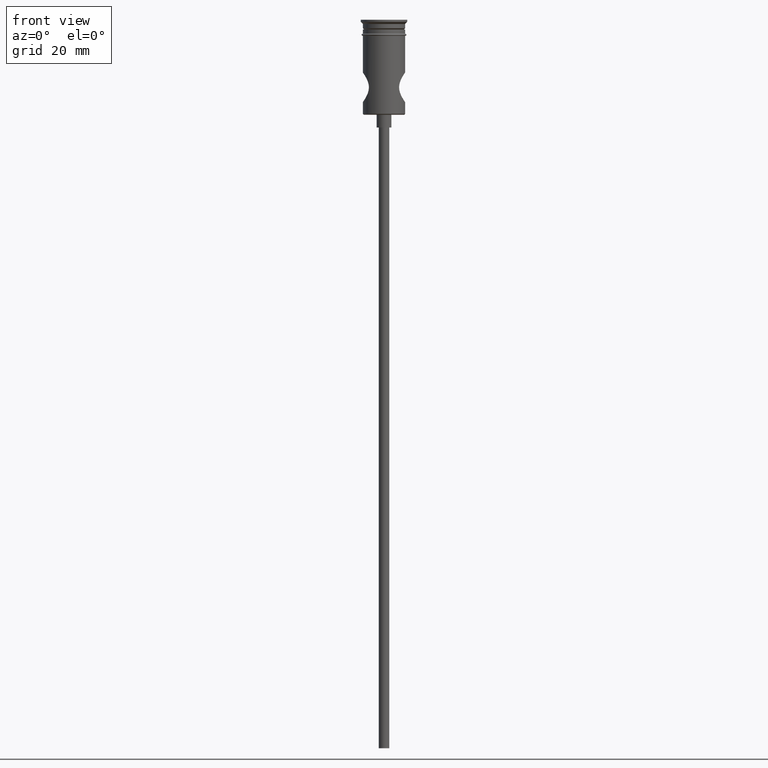
[diagram: clean part render]
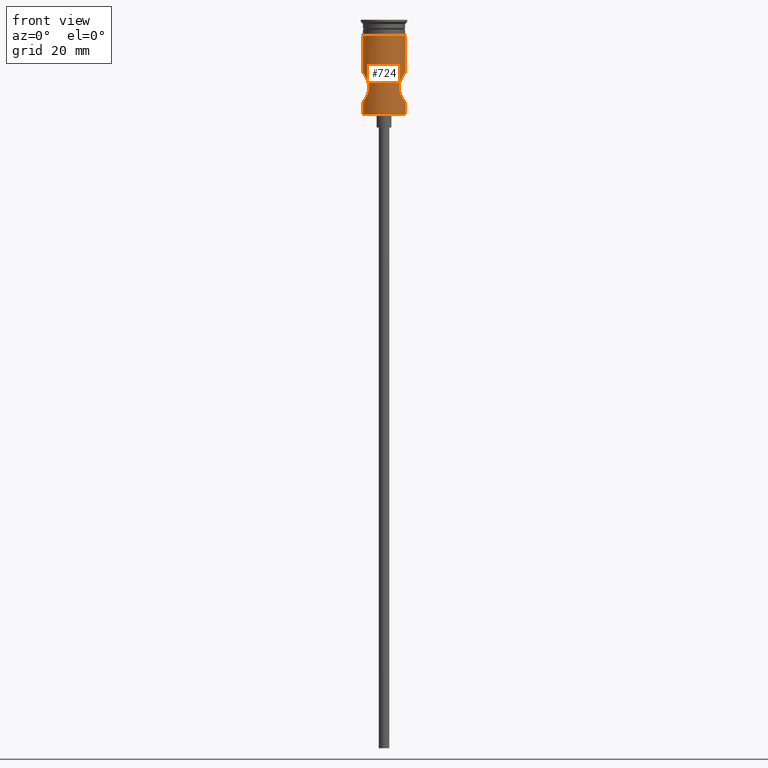
[diagram: same view with one face highlighted and labeled with its STEP entity id]
A machine part, front view. The second image highlights one B-rep face of the part: STEP entity #724.
In plain terms, the highlighted cylindrical surface (edge-blend (fillet) strip) has radius 5 mm, axis along (-0, -0, 1).
Its self-contained STEP definition (entity closure, byte-faithful):
#14 = EDGE_CURVE ( 'NONE', #882, #389, #831, .T. ) ;
#21 = FACE_OUTER_BOUND ( 'NONE', #793, .T. ) ;
#26 = CARTESIAN_POINT ( 'NONE',  ( -4.867983987714242566, -1.162668094897675308, -12.69064358740267728 ) ) ;
#41 = B_SPLINE_CURVE_WITH_KNOTS ( 'NONE', 3,
 ( #1193, #1357, #1248, #229, #1070, #538, #964, #1426, #1433, #336, #446, #1395, #94, #1288, #1195, #640, #948, #222, #439, #1299, #953, #1084, #326, #1414, #1315, #331, #110, #765, #1203, #558, #1379, #706, #824, #931 ),
 .UNSPECIFIED., .F., .F.,
 ( 4, 2, 2, 2, 2, 2, 2, 2, 2, 2, 2, 2, 2, 2, 2, 2, 4 ),
 ( 0.01136858566133556320, 0.01207818438826614021, 0.01278778311519671897, 0.01349738184212729772, 0.01420698056905787474, 0.01491657929598845175, 0.01562617802291902877, 0.01633577674984960579, 0.01704537547678018627, 0.01775497420371076329, 0.01846457293064134031, 0.01917417165757191733, 0.01988377038450249434, 0.02059336911143307483, 0.02130296783836365185, 0.02201256656529422887, 0.02272216529222480588 ),
 .UNSPECIFIED. ) ;
#53 = CARTESIAN_POINT ( 'NONE',  ( -3.570659081539441004, -3.500056246640168567, -15.76290149602504975 ) ) ;
#75 = CARTESIAN_POINT ( 'NONE',  ( -4.999999999999997335, 6.123233995736763324E-16, 0.000000000000000000 ) ) ;
#76 = DIRECTION ( 'NONE',  ( -0.000000000000000000, -0.000000000000000000, 1.000000000000000000 ) ) ;
#78 = CIRCLE ( 'NONE', #873, 4.999999999999999112 ) ;
#94 = CARTESIAN_POINT ( 'NONE',  ( 3.895739369778995265, -3.136303962901519249, -14.43013777325952240 ) ) ;
#110 = CARTESIAN_POINT ( 'NONE',  ( 4.517756352871694858, -2.151795251714681001, -18.76940848963280217 ) ) ;
#135 = VERTEX_POINT ( 'NONE', #1276 ) ;
#156 = B_SPLINE_CURVE_WITH_KNOTS ( 'NONE', 3,
 ( #726, #1024, #1283, #603, #308, #1256, #623, #1382, #410, #1390, #255, #734, #683, #1039, #1162, #194, #819, #53, #997, #916, #1262, #1049, #399, #1112, #188, #532, #826, #1273, #709, #26, #476, #302, #615, #910 ),
 .UNSPECIFIED., .F., .F.,
 ( 4, 2, 2, 2, 2, 2, 2, 2, 2, 2, 2, 2, 2, 2, 2, 2, 4 ),
 ( 0.000000000000000000, 0.0007105366038334728082, 0.001421073207666945616, 0.002131609811500418533, 0.002842146415333890799, 0.003552683019167363499, 0.004263219623000835332, 0.004973756226834308465, 0.005684292830667780731, 0.006394829434501252997, 0.007105366038334726131, 0.007815902642168198397, 0.008526439246001670663, 0.009236975849835144664, 0.009947512453668618665, 0.01065804905750209093, 0.01136858566133556320 ),
 .UNSPECIFIED. ) ;
#188 = CARTESIAN_POINT ( 'NONE',  ( -4.249353914272581356, -2.641141518392748910, -13.69263973231696774 ) ) ;
#194 = CARTESIAN_POINT ( 'NONE',  ( -3.595807167575519880, -3.474821472305468006, -16.47972571000775233 ) ) ;
#199 = VECTOR ( 'NONE', #76, 1000.000000000000000 ) ;
#211 = CARTESIAN_POINT ( 'NONE',  ( 4.999999999999997335, -2.566613809368467357E-18, -12.50000000000000000 ) ) ;
#222 = CARTESIAN_POINT ( 'NONE',  ( 3.570994643509252331, -3.499713904565604050, -16.24506344908463973 ) ) ;
#229 = CARTESIAN_POINT ( 'NONE',  ( 4.916439270295949626, -0.9398614332659723791, -12.62027120389697998 ) ) ;
#254 = CARTESIAN_POINT ( 'NONE',  ( -4.999999999999997335, 6.123233995736763324E-16, 0.000000000000000000 ) ) ;
#255 = CARTESIAN_POINT ( 'NONE',  ( -4.157812118375018073, -2.781267535482760067, -18.13615750793723791 ) ) ;
#281 = DIRECTION ( 'NONE',  ( -0.000000000000000000, -0.000000000000000000, 1.000000000000000000 ) ) ;
#285 = ORIENTED_EDGE ( 'NONE', *, *, #1252, .F. ) ;
#288 = ORIENTED_EDGE ( 'NONE', *, *, #616, .F. ) ;
#302 = CARTESIAN_POINT ( 'NONE',  ( -4.982628869212511802, -0.4776460173546703825, -12.52468910484750886 ) ) ;
#305 = CARTESIAN_POINT ( 'NONE',  ( 4.999999999999997335, 0.000000000000000000, 0.000000000000000000 ) ) ;
#308 = CARTESIAN_POINT ( 'NONE',  ( -4.867792988234955764, -1.163154629326878631, -19.30906393254161557 ) ) ;
#326 = CARTESIAN_POINT ( 'NONE',  ( 3.983893823206855700, -3.025210020259219590, -17.77411699399317513 ) ) ;
#327 = CARTESIAN_POINT ( 'NONE',  ( 4.999999999999997335, 0.000000000000000000, -19.50000000000000000 ) ) ;
#331 = CARTESIAN_POINT ( 'NONE',  ( 4.430092741868957518, -2.325186606330109651, -18.62532192001001974 ) ) ;
#336 = CARTESIAN_POINT ( 'NONE',  ( 4.248589671941461532, -2.642262130653794561, -13.69409696383316444 ) ) ;
#339 = DIRECTION ( 'NONE',  ( -0.000000000000000000, -0.000000000000000000, 1.000000000000000000 ) ) ;
#351 = EDGE_CURVE ( 'NONE', #442, #732, #1098, .T. ) ;
#389 = VERTEX_POINT ( 'NONE', #613 ) ;
#394 = EDGE_CURVE ( 'NONE', #732, #1411, #902, .T. ) ;
#397 = CARTESIAN_POINT ( 'NONE',  ( -4.999999999999997335, 6.148900133235956503E-16, -12.50000000000000000 ) ) ;
#399 = CARTESIAN_POINT ( 'NONE',  ( -3.982796017137843592, -3.026574460567178715, -14.22846030439630560 ) ) ;
#410 = CARTESIAN_POINT ( 'NONE',  ( -4.428186069255828805, -2.328788839128362653, -18.62210750386486779 ) ) ;
#439 = CARTESIAN_POINT ( 'NONE',  ( 3.595881830421372882, -3.474753557575580576, -16.48076390016037251 ) ) ;
#442 = VERTEX_POINT ( 'NONE', #462 ) ;
#446 = CARTESIAN_POINT ( 'NONE',  ( 4.157772080973118456, -2.781374294039361761, -13.86384087946209398 ) ) ;
#462 = CARTESIAN_POINT ( 'NONE',  ( -4.999999999999997335, 6.123233995736763324E-16, -22.29999999999998295 ) ) ;
#466 = EDGE_CURVE ( 'NONE', #882, #1411, #41, .T. ) ;
#474 = AXIS2_PLACEMENT_3D ( 'NONE', #786, #566, #574 ) ;
#476 = CARTESIAN_POINT ( 'NONE',  ( -4.916256218981320814, -0.9408299291222754768, -12.62053693904961271 ) ) ;
#508 = DIRECTION ( 'NONE',  ( -0.000000000000000000, -0.000000000000000000, 1.000000000000000000 ) ) ;
#532 = CARTESIAN_POINT ( 'NONE',  ( -4.428881612395301204, -2.327583483424053856, -13.37666337410697004 ) ) ;
#534 = ORIENTED_EDGE ( 'NONE', *, *, #1364, .F. ) ;
#538 = CARTESIAN_POINT ( 'NONE',  ( 4.746196912351519970, -1.588334970602913954, -12.87254662671362304 ) ) ;
#544 = ORIENTED_EDGE ( 'NONE', *, *, #14, .T. ) ;
#558 = CARTESIAN_POINT ( 'NONE',  ( 4.867955598446419785, -1.162480502208107280, -19.30930261204487763 ) ) ;
#565 = VECTOR ( 'NONE', #711, 1000.000000000000000 ) ;
#566 = DIRECTION ( 'NONE',  ( -0.000000000000000000, -0.000000000000000000, 1.000000000000000000 ) ) ;
#574 = DIRECTION ( 'NONE',  ( 1.000000000000000000, 0.000000000000000000, 0.000000000000000000 ) ) ;
#603 = CARTESIAN_POINT ( 'NONE',  ( -4.917023530514224916, -0.9364669193951435933, -19.38057557686099130 ) ) ;
#604 = ORIENTED_EDGE ( 'NONE', *, *, #466, .F. ) ;
#613 = CARTESIAN_POINT ( 'NONE',  ( 4.999999999999999112, 0.000000000000000000, -3.799999999999998934 ) ) ;
#615 = CARTESIAN_POINT ( 'NONE',  ( -4.999999999999999112, -0.2371603752032608592, -12.49999999999999822 ) ) ;
#616 = EDGE_CURVE ( 'NONE', #1167, #389, #78, .T. ) ;
#623 = CARTESIAN_POINT ( 'NONE',  ( -4.674688623500593998, -1.785640449077907865, -19.01869104075543504 ) ) ;
#633 = DIRECTION ( 'NONE',  ( -0.000000000000000000, -0.000000000000000000, 1.000000000000000000 ) ) ;
#640 = CARTESIAN_POINT ( 'NONE',  ( 3.594691202437674704, -3.475973489464814659, -15.52795398460032317 ) ) ;
#642 = DIRECTION ( 'NONE',  ( 1.000000000000000000, 0.000000000000000000, 0.000000000000000000 ) ) ;
#683 = CARTESIAN_POINT ( 'NONE',  ( -3.898231521578598979, -3.133229919584781253, -17.57604949843092967 ) ) ;
#706 = CARTESIAN_POINT ( 'NONE',  ( 4.982662755632213170, -0.4762835908019174003, -19.47535477954639305 ) ) ;
#709 = CARTESIAN_POINT ( 'NONE',  ( -4.746099814749834778, -1.588584826808698613, -12.87269521592071442 ) ) ;
#711 = DIRECTION ( 'NONE',  ( -0.000000000000000000, -0.000000000000000000, 1.000000000000000000 ) ) ;
#721 = VECTOR ( 'NONE', #281, 1000.000000000000000 ) ;
#724 = ADVANCED_FACE ( 'NONE', ( #21 ), #1109, .T. ) ;
#726 = CARTESIAN_POINT ( 'NONE',  ( -4.999999999999997335, 0.000000000000000000, -19.50000000000000000 ) ) ;
#727 = ORIENTED_EDGE ( 'NONE', *, *, #968, .F. ) ;
#732 = VERTEX_POINT ( 'NONE', #1335 ) ;
#734 = CARTESIAN_POINT ( 'NONE',  ( -3.982200312216191307, -3.027363768862568083, -17.77022219329247577 ) ) ;
#765 = CARTESIAN_POINT ( 'NONE',  ( 4.675804657553948473, -1.782469094714183910, -19.02037251247935146 ) ) ;
#786 = CARTESIAN_POINT ( 'NONE',  ( 0.000000000000000000, 0.000000000000000000, 0.000000000000000000 ) ) ;
#793 = EDGE_LOOP ( 'NONE', ( #727, #884, #1096, #604, #544, #288, #285, #534 ) ) ;
#819 = CARTESIAN_POINT ( 'NONE',  ( -3.570769539400989512, -3.499943557075027467, -16.23875620938738251 ) ) ;
#824 = CARTESIAN_POINT ( 'NONE',  ( 4.999999999999997335, -0.2403984540558916083, -19.49999999999999645 ) ) ;
#826 = CARTESIAN_POINT ( 'NONE',  ( -4.514987869455996616, -2.157566970566973108, -13.23509997660900517 ) ) ;
#831 = LINE ( 'NONE', #305, #199 ) ;
#873 = AXIS2_PLACEMENT_3D ( 'NONE', #1175, #633, #642 ) ;
#880 = DIRECTION ( 'NONE',  ( -1.000000000000000000, 0.000000000000000000, 0.000000000000000000 ) ) ;
#882 = VERTEX_POINT ( 'NONE', #211 ) ;
#884 = ORIENTED_EDGE ( 'NONE', *, *, #351, .T. ) ;
#902 = LINE ( 'NONE', #1361, #721 ) ;
#910 = CARTESIAN_POINT ( 'NONE',  ( -4.999999999999997335, 6.148900133235956503E-16, -12.50000000000000000 ) ) ;
#916 = CARTESIAN_POINT ( 'NONE',  ( -3.684419786477897585, -3.380727498486507443, -15.06382182351514487 ) ) ;
#919 = LINE ( 'NONE', #254, #565 ) ;
#931 = CARTESIAN_POINT ( 'NONE',  ( 4.999999999999997335, 0.000000000000000000, -19.50000000000000000 ) ) ;
#948 = CARTESIAN_POINT ( 'NONE',  ( 3.570438540339076816, -3.500281244049249896, -15.76317787171778484 ) ) ;
#953 = CARTESIAN_POINT ( 'NONE',  ( 3.750129256699476610, -3.309052136048265425, -17.16230965741016945 ) ) ;
#964 = CARTESIAN_POINT ( 'NONE',  ( 4.673659481606455834, -1.788174745749496974, -12.98292214720542681 ) ) ;
#968 = EDGE_CURVE ( 'NONE', #442, #135, #1266, .T. ) ;
#984 = VERTEX_POINT ( 'NONE', #397 ) ;
#997 = CARTESIAN_POINT ( 'NONE',  ( -3.594836440833074409, -3.475833503732776997, -15.52636569858374216 ) ) ;
#1024 = CARTESIAN_POINT ( 'NONE',  ( -4.999999999999997335, -0.2407161887825677027, -19.50000000000000355 ) ) ;
#1039 = CARTESIAN_POINT ( 'NONE',  ( -3.749404186130726568, -3.309880205360250738, -17.16006671215495061 ) ) ;
#1049 = CARTESIAN_POINT ( 'NONE',  ( -3.897704841096373496, -3.133912156553521289, -14.42504095752970272 ) ) ;
#1051 = VECTOR ( 'NONE', #508, 1000.000000000000000 ) ;
#1070 = CARTESIAN_POINT ( 'NONE',  ( 4.868192471333491866, -1.161849892071759704, -12.69033575581851991 ) ) ;
#1072 = CARTESIAN_POINT ( 'NONE',  ( 0.000000000000000000, 0.000000000000000000, -22.29999999999998295 ) ) ;
#1084 = CARTESIAN_POINT ( 'NONE',  ( 3.898682939928062474, -3.132661299111801245, -17.57709320074676995 ) ) ;
#1096 = ORIENTED_EDGE ( 'NONE', *, *, #394, .T. ) ;
#1098 = CIRCLE ( 'NONE', #1146, 4.999999999999997335 ) ;
#1109 = CYLINDRICAL_SURFACE ( 'NONE', #474, 4.999999999999997335 ) ;
#1112 = CARTESIAN_POINT ( 'NONE',  ( -4.158235378742428878, -2.780628636560694478, -13.86303714491904415 ) ) ;
#1146 = AXIS2_PLACEMENT_3D ( 'NONE', #1072, #339, #880 ) ;
#1162 = CARTESIAN_POINT ( 'NONE',  ( -3.684801900393930740, -3.380303005003528316, -16.93705528951160844 ) ) ;
#1167 = VERTEX_POINT ( 'NONE', #1202 ) ;
#1175 = CARTESIAN_POINT ( 'NONE',  ( 0.000000000000000000, 0.000000000000000000, -3.799999999999998934 ) ) ;
#1193 = CARTESIAN_POINT ( 'NONE',  ( 4.999999999999997335, -2.566613809368467357E-18, -12.50000000000000000 ) ) ;
#1195 = CARTESIAN_POINT ( 'NONE',  ( 3.683539878596076012, -3.381675694554021394, -15.06753625433506016 ) ) ;
#1202 = CARTESIAN_POINT ( 'NONE',  ( -5.000000000000000000, 6.123233995736766282E-16, -3.799999999999998934 ) ) ;
#1203 = CARTESIAN_POINT ( 'NONE',  ( 4.747110842247819207, -1.585336329575865566, -19.12882620454187688 ) ) ;
#1248 = CARTESIAN_POINT ( 'NONE',  ( 4.982711918612967139, -0.4767562777365489390, -12.52457057321148604 ) ) ;
#1252 = EDGE_CURVE ( 'NONE', #984, #1167, #919, .T. ) ;
#1256 = CARTESIAN_POINT ( 'NONE',  ( -4.746911793493237219, -1.585927392041884820, -19.12852474954947368 ) ) ;
#1262 = CARTESIAN_POINT ( 'NONE',  ( -3.747877086464327157, -3.311634910139662047, -14.84458855276694678 ) ) ;
#1266 = LINE ( 'NONE', #75, #1051 ) ;
#1273 = CARTESIAN_POINT ( 'NONE',  ( -4.673268569421630936, -1.789070029896046243, -12.98354582332885165 ) ) ;
#1276 = CARTESIAN_POINT ( 'NONE',  ( -4.999999999999997335, 0.000000000000000000, -19.50000000000000000 ) ) ;
#1283 = CARTESIAN_POINT ( 'NONE',  ( -4.982723327959925008, -0.4759820666327093663, -19.47544279110368137 ) ) ;
#1288 = CARTESIAN_POINT ( 'NONE',  ( 3.747640547736768912, -3.311854180050358476, -14.84566389264594655 ) ) ;
#1299 = CARTESIAN_POINT ( 'NONE',  ( 3.685548694541103565, -3.379498371712150284, -16.94023240168401045 ) ) ;
#1315 = CARTESIAN_POINT ( 'NONE',  ( 4.251971835984950765, -2.636844698082868810, -18.31211115133643119 ) ) ;
#1335 = CARTESIAN_POINT ( 'NONE',  ( 4.999999999999997335, 0.000000000000000000, -22.29999999999998295 ) ) ;
#1357 = CARTESIAN_POINT ( 'NONE',  ( 4.999999999999997335, -0.2368473339933011013, -12.50000000000000178 ) ) ;
#1361 = CARTESIAN_POINT ( 'NONE',  ( 4.999999999999997335, 0.000000000000000000, 0.000000000000000000 ) ) ;
#1364 = EDGE_CURVE ( 'NONE', #135, #984, #156, .T. ) ;
#1379 = CARTESIAN_POINT ( 'NONE',  ( 4.917189828219349579, -0.9354241757019895465, -19.38081624967927041 ) ) ;
#1382 = CARTESIAN_POINT ( 'NONE',  ( -4.514512332921254867, -2.158796872327483296, -18.76416415521027048 ) ) ;
#1390 = CARTESIAN_POINT ( 'NONE',  ( -4.250179789261264496, -2.639708521817378362, -18.30881877567685834 ) ) ;
#1395 = CARTESIAN_POINT ( 'NONE',  ( 3.981112443873080053, -3.028837293434794908, -14.23213026449943364 ) ) ;
#1411 = VERTEX_POINT ( 'NONE', #327 ) ;
#1414 = CARTESIAN_POINT ( 'NONE',  ( 4.161034651282145447, -2.776525939387527675, -18.14249632040765547 ) ) ;
#1426 = CARTESIAN_POINT ( 'NONE',  ( 4.514482534237688860, -2.158728634962964854, -13.23590550600187932 ) ) ;
#1433 = CARTESIAN_POINT ( 'NONE',  ( 4.426715284047066490, -2.331577826622753591, -13.38036590003647852 ) ) ;